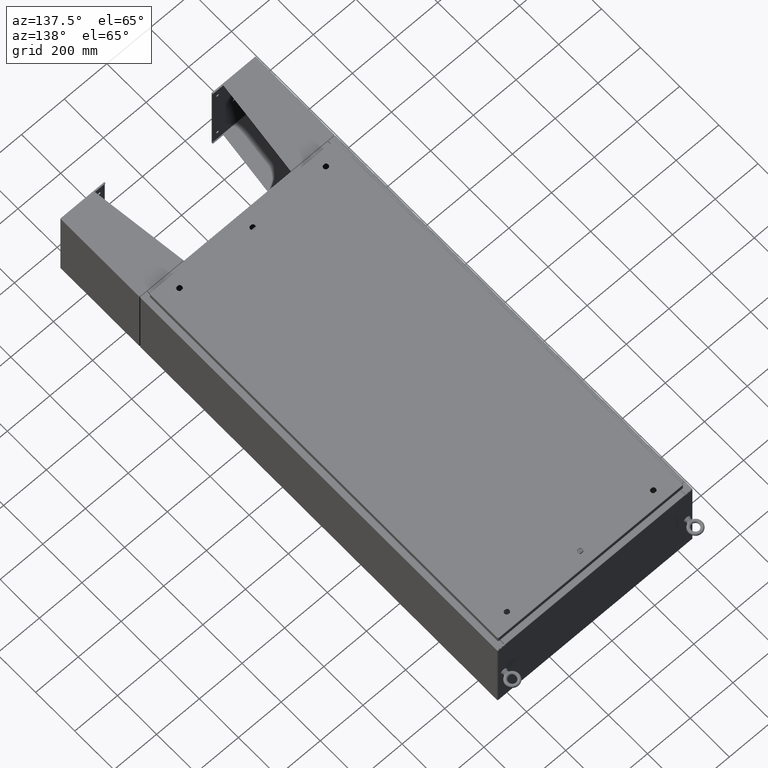
[diagram: clean part render]
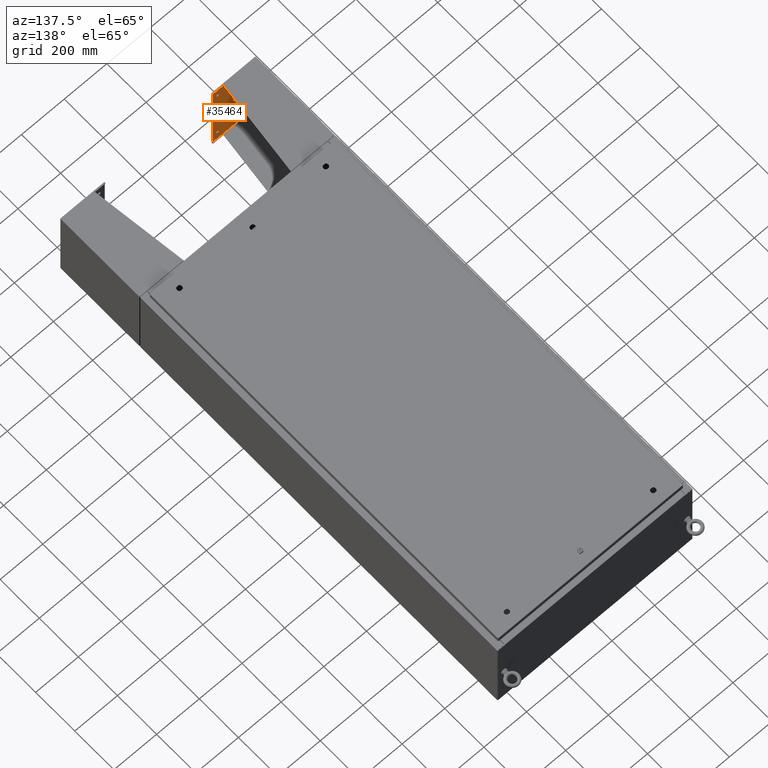
[diagram: same view with one face highlighted and labeled with its STEP entity id]
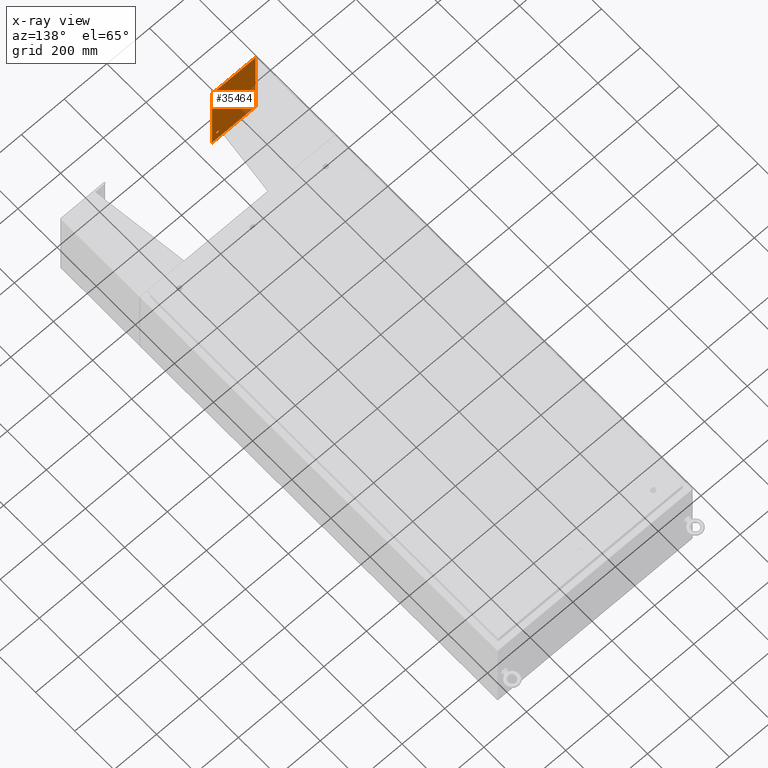
[diagram: x-ray of the same camera — body ghosted, the highlighted face saturated]
A machine part, auxiliary view. The second image highlights one B-rep face of the part: STEP entity #35464.
The next image is the same camera in x-ray: the body ghosted, the highlighted face saturated — about 15% of this face is hidden behind the body in this view.
In plain terms, the highlighted planar face has unit normal (-0, -1, -0).
Its self-contained STEP definition (entity closure, byte-faithful):
#365 = CARTESIAN_POINT ( 'NONE',  ( -0.2500000000000000000, 3.061616997868383000E-017, 0.0000000000000000000 ) ) ;
#1911 = EDGE_CURVE ( 'NONE', #53587, #11955, #47060, .T. ) ;
#2128 = FACE_OUTER_BOUND ( 'NONE', #9901, .T. ) ;
#2397 = EDGE_CURVE ( 'NONE', #47712, #67513, #14595, .T. ) ;
#3477 = CARTESIAN_POINT ( 'NONE',  ( -5.628999999999999600, -2.999999999999999600, 0.0000000000000000000 ) ) ;
#4412 = CARTESIAN_POINT ( 'NONE',  ( -7.878999999999998700, 4.000000000000000000, 0.0000000000000000000 ) ) ;
#5403 = AXIS2_PLACEMENT_3D ( 'NONE', #39735, #6940, #45120 ) ;
#5821 = DIRECTION ( 'NONE',  ( -1.000000000000000000, 0.0000000000000000000, -0.0000000000000000000 ) ) ;
#6940 = DIRECTION ( 'NONE',  ( 0.0000000000000000000, 0.0000000000000000000, 1.000000000000000000 ) ) ;
#7064 = CARTESIAN_POINT ( 'NONE',  ( 5.628999999999999600, -2.999999999999999600, 0.0000000000000000000 ) ) ;
#7740 = CIRCLE ( 'NONE', #13532, 0.2499999999999998100 ) ;
#8616 = CARTESIAN_POINT ( 'NONE',  ( 0.2500000000000000000, 0.0000000000000000000, 0.0000000000000000000 ) ) ;
#9901 = EDGE_LOOP ( 'NONE', ( #60611, #18437, #65008, #56623 ) ) ;
#10731 = DIRECTION ( 'NONE',  ( -0.0000000000000000000, -0.0000000000000000000, -1.000000000000000000 ) ) ;
#11520 = CARTESIAN_POINT ( 'NONE',  ( 7.879000000000000400, -4.000000000000000000, 0.0000000000000000000 ) ) ;
#11955 = VERTEX_POINT ( 'NONE', #8616 ) ;
#13532 = AXIS2_PLACEMENT_3D ( 'NONE', #43418, #10731, #48868 ) ;
#13574 = LINE ( 'NONE', #70902, #55313 ) ;
#14053 = DIRECTION ( 'NONE',  ( 0.0000000000000000000, 0.0000000000000000000, 1.000000000000000000 ) ) ;
#14595 = CIRCLE ( 'NONE', #37898, 0.2499999999999998100 ) ;
#15035 = FACE_BOUND ( 'NONE', #21174, .T. ) ;
#15280 = EDGE_CURVE ( 'NONE', #52521, #48463, #26128, .T. ) ;
#16059 = AXIS2_PLACEMENT_3D ( 'NONE', #46673, #14053, #52137 ) ;
#17813 = LINE ( 'NONE', #36581, #45068 ) ;
#18437 = ORIENTED_EDGE ( 'NONE', *, *, #26506, .T. ) ;
#19699 = ORIENTED_EDGE ( 'NONE', *, *, #61763, .T. ) ;
#21174 = EDGE_LOOP ( 'NONE', ( #46960, #30608 ) ) ;
#21728 = VERTEX_POINT ( 'NONE', #36516 ) ;
#22795 = CARTESIAN_POINT ( 'NONE',  ( 5.878999999999999600, -2.999999999999999600, 0.0000000000000000000 ) ) ;
#22922 = AXIS2_PLACEMENT_3D ( 'NONE', #60242, #38605, #5821 ) ;
#26128 = CIRCLE ( 'NONE', #36891, 0.2499999999999998100 ) ;
#26506 = EDGE_CURVE ( 'NONE', #33326, #54762, #13574, .T. ) ;
#28287 = DIRECTION ( 'NONE',  ( -1.000000000000000000, 0.0000000000000000000, 0.0000000000000000000 ) ) ;
#29611 = FACE_BOUND ( 'NONE', #49552, .T. ) ;
#30608 = ORIENTED_EDGE ( 'NONE', *, *, #1911, .F. ) ;
#33326 = VERTEX_POINT ( 'NONE', #59955 ) ;
#33933 = LINE ( 'NONE', #50875, #46616 ) ;
#35464 = ADVANCED_FACE ( 'NONE', ( #2128, #15035, #44038, #29611 ), #49244, .F. ) ;
#36516 = CARTESIAN_POINT ( 'NONE',  ( -7.878999999999998700, -4.000000000000000000, 0.0000000000000000000 ) ) ;
#36554 = CIRCLE ( 'NONE', #16059, 0.2500000000000000000 ) ;
#36581 = CARTESIAN_POINT ( 'NONE',  ( -7.878999999999998700, -4.000000000000000000, 0.0000000000000000000 ) ) ;
#36891 = AXIS2_PLACEMENT_3D ( 'NONE', #22795, #66431, #28287 ) ;
#36947 = DIRECTION ( 'NONE',  ( -0.0000000000000000000, -1.000000000000000000, -0.0000000000000000000 ) ) ;
#36987 = ORIENTED_EDGE ( 'NONE', *, *, #15280, .T. ) ;
#37506 = CARTESIAN_POINT ( 'NONE',  ( -6.128999999999998700, -2.999999999999999600, 0.0000000000000000000 ) ) ;
#37898 = AXIS2_PLACEMENT_3D ( 'NONE', #48767, #48935, #49226 ) ;
#38605 = DIRECTION ( 'NONE',  ( 0.0000000000000000000, 0.0000000000000000000, -1.000000000000000000 ) ) ;
#38628 = EDGE_CURVE ( 'NONE', #67513, #47712, #55356, .T. ) ;
#39456 = EDGE_CURVE ( 'NONE', #11955, #53587, #36554, .T. ) ;
#39735 = CARTESIAN_POINT ( 'NONE',  ( -5.878999999999999600, -2.999999999999999600, 0.0000000000000000000 ) ) ;
#39847 = ORIENTED_EDGE ( 'NONE', *, *, #2397, .F. ) ;
#42052 = DIRECTION ( 'NONE',  ( 1.000000000000000000, 0.0000000000000000000, 0.0000000000000000000 ) ) ;
#42179 = CARTESIAN_POINT ( 'NONE',  ( -7.878999999999998700, -4.000000000000000000, 0.0000000000000000000 ) ) ;
#43418 = CARTESIAN_POINT ( 'NONE',  ( 5.878999999999999600, -2.999999999999999600, 0.0000000000000000000 ) ) ;
#44038 = FACE_BOUND ( 'NONE', #67112, .T. ) ;
#45068 = VECTOR ( 'NONE', #42052, 39.37007874015748100 ) ;
#45120 = DIRECTION ( 'NONE',  ( 1.000000000000000000, 0.0000000000000000000, 0.0000000000000000000 ) ) ;
#46616 = VECTOR ( 'NONE', #67408, 39.37007874015748100 ) ;
#46673 = CARTESIAN_POINT ( 'NONE',  ( 0.0000000000000000000, 0.0000000000000000000, 0.0000000000000000000 ) ) ;
#46960 = ORIENTED_EDGE ( 'NONE', *, *, #39456, .F. ) ;
#47060 = CIRCLE ( 'NONE', #67550, 0.2500000000000000000 ) ;
#47712 = VERTEX_POINT ( 'NONE', #3477 ) ;
#48463 = VERTEX_POINT ( 'NONE', #64294 ) ;
#48767 = CARTESIAN_POINT ( 'NONE',  ( -5.878999999999999600, -2.999999999999999600, 0.0000000000000000000 ) ) ;
#48868 = DIRECTION ( 'NONE',  ( -1.000000000000000000, 0.0000000000000000000, 0.0000000000000000000 ) ) ;
#48870 = VECTOR ( 'NONE', #36947, 39.37007874015748100 ) ;
#48935 = DIRECTION ( 'NONE',  ( 0.0000000000000000000, 0.0000000000000000000, 1.000000000000000000 ) ) ;
#49060 = EDGE_CURVE ( 'NONE', #21728, #65377, #17813, .T. ) ;
#49226 = DIRECTION ( 'NONE',  ( 1.000000000000000000, 0.0000000000000000000, 0.0000000000000000000 ) ) ;
#49244 = PLANE ( 'NONE',  #22922 ) ;
#49552 = EDGE_LOOP ( 'NONE', ( #19699, #36987 ) ) ;
#49855 = DIRECTION ( 'NONE',  ( -1.000000000000000000, -0.0000000000000000000, -0.0000000000000000000 ) ) ;
#50875 = CARTESIAN_POINT ( 'NONE',  ( 7.879000000000000400, -4.000000000000000000, 0.0000000000000000000 ) ) ;
#52137 = DIRECTION ( 'NONE',  ( 1.000000000000000000, 0.0000000000000000000, 0.0000000000000000000 ) ) ;
#52521 = VERTEX_POINT ( 'NONE', #7064 ) ;
#53587 = VERTEX_POINT ( 'NONE', #365 ) ;
#54762 = VERTEX_POINT ( 'NONE', #4412 ) ;
#55313 = VECTOR ( 'NONE', #49855, 39.37007874015748100 ) ;
#55356 = CIRCLE ( 'NONE', #5403, 0.2499999999999998100 ) ;
#56623 = ORIENTED_EDGE ( 'NONE', *, *, #49060, .T. ) ;
#57670 = EDGE_CURVE ( 'NONE', #65377, #33326, #33933, .T. ) ;
#58077 = CARTESIAN_POINT ( 'NONE',  ( 0.0000000000000000000, 0.0000000000000000000, 0.0000000000000000000 ) ) ;
#58856 = DIRECTION ( 'NONE',  ( 0.0000000000000000000, 0.0000000000000000000, 1.000000000000000000 ) ) ;
#59955 = CARTESIAN_POINT ( 'NONE',  ( 7.879000000000000400, 4.000000000000000000, 0.0000000000000000000 ) ) ;
#60242 = CARTESIAN_POINT ( 'NONE',  ( 7.879000000000000400, 4.000000000000000000, 0.0000000000000000000 ) ) ;
#60611 = ORIENTED_EDGE ( 'NONE', *, *, #57670, .T. ) ;
#60654 = EDGE_CURVE ( 'NONE', #54762, #21728, #63421, .T. ) ;
#61541 = DIRECTION ( 'NONE',  ( 1.000000000000000000, 0.0000000000000000000, 0.0000000000000000000 ) ) ;
#61763 = EDGE_CURVE ( 'NONE', #48463, #52521, #7740, .T. ) ;
#63421 = LINE ( 'NONE', #42179, #48870 ) ;
#64294 = CARTESIAN_POINT ( 'NONE',  ( 6.128999999999998700, -2.999999999999999600, 0.0000000000000000000 ) ) ;
#65008 = ORIENTED_EDGE ( 'NONE', *, *, #60654, .T. ) ;
#65377 = VERTEX_POINT ( 'NONE', #11520 ) ;
#66431 = DIRECTION ( 'NONE',  ( -0.0000000000000000000, -0.0000000000000000000, -1.000000000000000000 ) ) ;
#67112 = EDGE_LOOP ( 'NONE', ( #39847, #70572 ) ) ;
#67408 = DIRECTION ( 'NONE',  ( 0.0000000000000000000, 1.000000000000000000, 0.0000000000000000000 ) ) ;
#67513 = VERTEX_POINT ( 'NONE', #37506 ) ;
#67550 = AXIS2_PLACEMENT_3D ( 'NONE', #58077, #58856, #61541 ) ;
#70572 = ORIENTED_EDGE ( 'NONE', *, *, #38628, .F. ) ;
#70902 = CARTESIAN_POINT ( 'NONE',  ( -7.878999999999998700, 4.000000000000000000, 0.0000000000000000000 ) ) ;